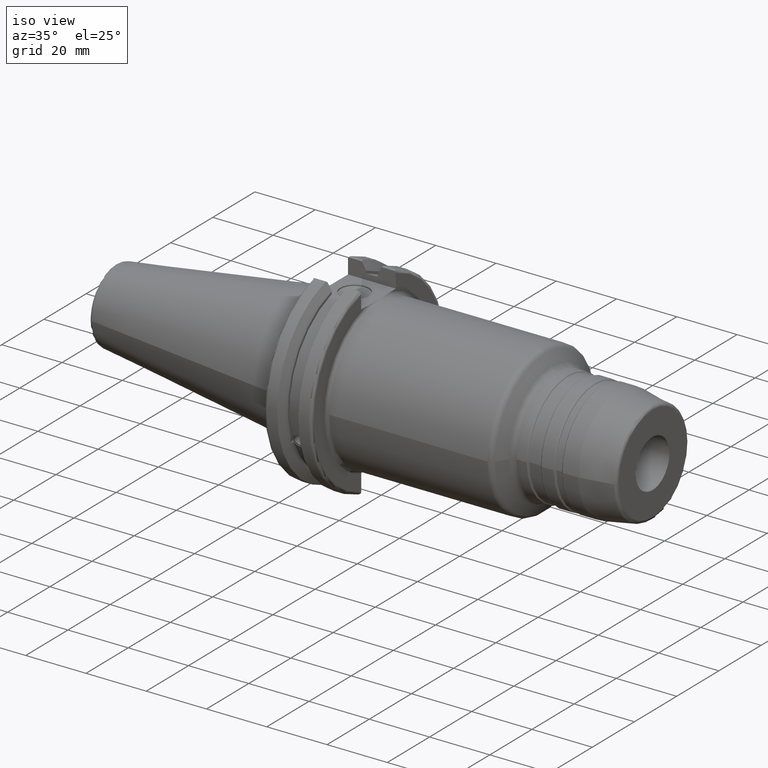
[diagram: clean part render]
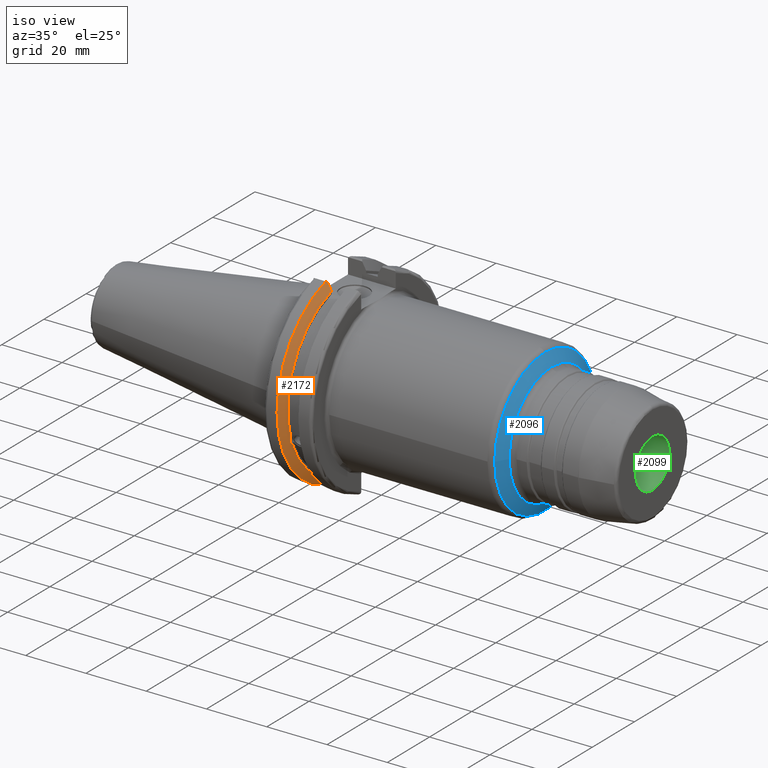
[diagram: same view with three faces highlighted in distinct colors, each labeled with its STEP entity id]
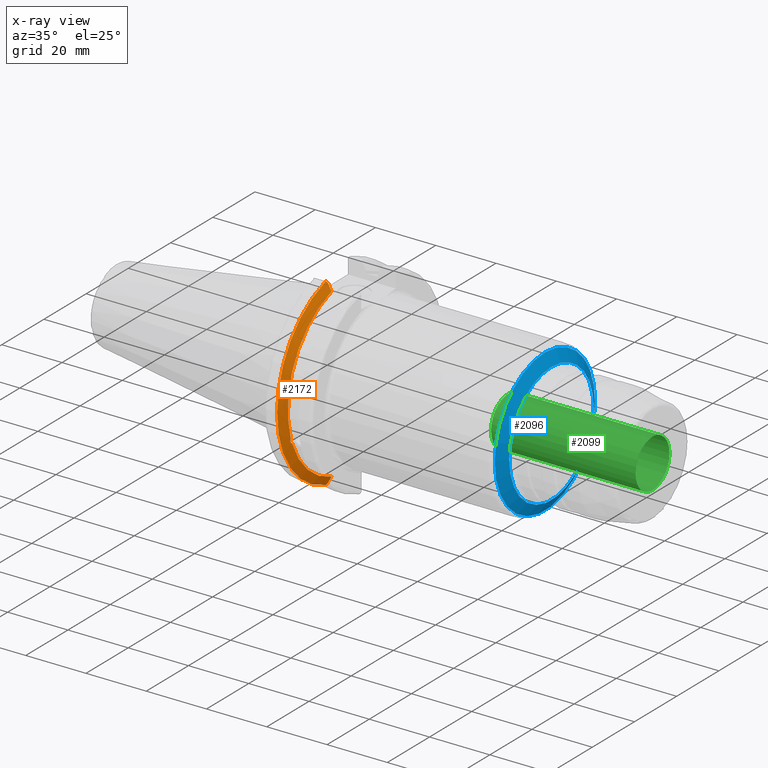
[diagram: x-ray of the same camera — body ghosted, the three highlighted faces saturated]
A machine part, iso view with three faces highlighted in distinct colors.
The next image is the same camera in x-ray (body ghosted, the three faces saturated) — at least one of them is partly hidden behind the body in this view.
Their STEP definitions:

[orange] entity #2172 — the highlighted conical surface has half-angle 60 deg.
#25=(
BOUNDED_CURVE()
B_SPLINE_CURVE(2,(#4064,#4065,#4066),.UNSPECIFIED.,.F.,.F.)
B_SPLINE_CURVE_WITH_KNOTS((3,3),(0.,0.276549142796136),.UNSPECIFIED.)
CURVE()
GEOMETRIC_REPRESENTATION_ITEM()
RATIONAL_B_SPLINE_CURVE((1.,1.00095203903316,1.00031614444813))
REPRESENTATION_ITEM('')
);
#26=(
BOUNDED_CURVE()
B_SPLINE_CURVE(2,(#4076,#4077,#4078),.UNSPECIFIED.,.F.,.F.)
B_SPLINE_CURVE_WITH_KNOTS((3,3),(0.0550586467392022,0.33160778953585),
 .UNSPECIFIED.)
CURVE()
GEOMETRIC_REPRESENTATION_ITEM()
RATIONAL_B_SPLINE_CURVE((1.00031614445148,1.00095203904325,1.))
REPRESENTATION_ITEM('')
);
#27=(
BOUNDED_CURVE()
B_SPLINE_CURVE(2,(#4111,#4112,#4113),.UNSPECIFIED.,.F.,.F.)
B_SPLINE_CURVE_WITH_KNOTS((3,3),(0.,0.0639048713676282),.UNSPECIFIED.)
CURVE()
GEOMETRIC_REPRESENTATION_ITEM()
RATIONAL_B_SPLINE_CURVE((1.,1.00028444218284,1.00047644010574))
REPRESENTATION_ITEM('')
);
#28=(
BOUNDED_CURVE()
B_SPLINE_CURVE(2,(#4172,#4173,#4174),.UNSPECIFIED.,.F.,.F.)
B_SPLINE_CURVE_WITH_KNOTS((3,3),(0.329353533631205,0.393258405001025),
 .UNSPECIFIED.)
CURVE()
GEOMETRIC_REPRESENTATION_ITEM()
RATIONAL_B_SPLINE_CURVE((1.00047644010572,1.00028444218283,1.))
REPRESENTATION_ITEM('')
);
#119=CONICAL_SURFACE('',#2495,30.3546886482472,1.0471975511966);
#145=B_SPLINE_CURVE_WITH_KNOTS('',3,(#3652,#3653,#3654,#3655,#3656,#3657,
#3658,#3659,#3660,#3661,#3662,#3663,#3664,#3665),.UNSPECIFIED.,.F.,.F.,
(4,2,2,2,2,2,4),(0.451995700189024,0.464547828547663,0.504528771685167,
0.544509714822672,0.584490657960178,0.624471601097683,0.63702372945632),
 .UNSPECIFIED.);
#273=FACE_OUTER_BOUND('',#394,.T.);
#394=EDGE_LOOP('',(#2021,#2022,#2023,#2024,#2025,#2026,#2027,#2028));
#704=CIRCLE('',#2372,28.9593772964944);
#762=CIRCLE('',#2494,31.75);
#763=CIRCLE('',#2496,28.9593772964944);
#883=VERTEX_POINT('',#3649);
#884=VERTEX_POINT('',#3651);
#904=VERTEX_POINT('',#3750);
#974=VERTEX_POINT('',#4061);
#975=VERTEX_POINT('',#4063);
#978=VERTEX_POINT('',#4075);
#982=VERTEX_POINT('',#4109);
#995=VERTEX_POINT('',#4171);
#1164=EDGE_CURVE('',#884,#883,#145,.T.);
#1191=EDGE_CURVE('',#884,#904,#704,.T.);
#1286=EDGE_CURVE('',#975,#974,#25,.T.);
#1292=EDGE_CURVE('',#978,#904,#26,.T.);
#1300=EDGE_CURVE('',#982,#974,#27,.T.);
#1319=EDGE_CURVE('',#978,#995,#28,.T.);
#1347=EDGE_CURVE('',#982,#995,#762,.T.);
#1348=EDGE_CURVE('',#975,#883,#763,.T.);
#2021=ORIENTED_EDGE('',*,*,#1164,.T.);
#2022=ORIENTED_EDGE('',*,*,#1348,.F.);
#2023=ORIENTED_EDGE('',*,*,#1286,.T.);
#2024=ORIENTED_EDGE('',*,*,#1300,.F.);
#2025=ORIENTED_EDGE('',*,*,#1347,.T.);
#2026=ORIENTED_EDGE('',*,*,#1319,.F.);
#2027=ORIENTED_EDGE('',*,*,#1292,.T.);
#2028=ORIENTED_EDGE('',*,*,#1191,.F.);
#2172=ADVANCED_FACE('',(#273),#119,.T.);
#2372=AXIS2_PLACEMENT_3D('',#3751,#2894,#2895);
#2494=AXIS2_PLACEMENT_3D('',#4238,#3194,#3195);
#2495=AXIS2_PLACEMENT_3D('',#4239,#3196,#3197);
#2496=AXIS2_PLACEMENT_3D('',#4240,#3198,#3199);
#2894=DIRECTION('center_axis',(1.,0.,0.));
#2895=DIRECTION('ref_axis',(0.,0.,-1.));
#3194=DIRECTION('center_axis',(1.,0.,0.));
#3195=DIRECTION('ref_axis',(0.,0.,-1.));
#3196=DIRECTION('center_axis',(-1.,0.,0.));
#3197=DIRECTION('ref_axis',(0.,-1.,-1.22464679914735E-16));
#3198=DIRECTION('center_axis',(1.,0.,0.));
#3199=DIRECTION('ref_axis',(0.,0.,-1.));
#3649=CARTESIAN_POINT('',(9.2191,-27.4956274489925,-9.09043478536245));
#3651=CARTESIAN_POINT('',(9.2191,-26.9060914640648,-10.7101715919071));
#3652=CARTESIAN_POINT('Ctrl Pts',(9.2191,-26.9060914640648,-10.7101715919071));
#3653=CARTESIAN_POINT('Ctrl Pts',(9.20497959280038,-26.9406927482839,-10.6893765730703));
#3654=CARTESIAN_POINT('Ctrl Pts',(9.19150701821433,-26.9744191989197,-10.6676007180673));
#3655=CARTESIAN_POINT('Ctrl Pts',(9.13811855884095,-27.1113422433189,-10.5723885976054));
#3656=CARTESIAN_POINT('Ctrl Pts',(9.09998029158246,-27.2180531796526,-10.4801333026531));
#3657=CARTESIAN_POINT('Ctrl Pts',(9.04778935539424,-27.3968610665578,-10.2639559818059));
#3658=CARTESIAN_POINT('Ctrl Pts',(9.0341,-27.4684373304961,-10.139516340139));
#3659=CARTESIAN_POINT('Ctrl Pts',(9.0341,-27.559599249844,-9.8890510252165));
#3660=CARTESIAN_POINT('Ctrl Pts',(9.04778935539424,-27.5847569104122,-9.74771639360671));
#3661=CARTESIAN_POINT('Ctrl Pts',(9.09998029158246,-27.5867382255984,-9.46717946402648));
#3662=CARTESIAN_POINT('Ctrl Pts',(9.13811855884095,-27.5642934663232,-9.32791534028655));
#3663=CARTESIAN_POINT('Ctrl Pts',(9.19150701821434,-27.5206055003512,-9.16696618806877));
#3664=CARTESIAN_POINT('Ctrl Pts',(9.20497959280038,-27.5087667900418,-9.12860597076217));
#3665=CARTESIAN_POINT('Ctrl Pts',(9.2191,-27.4956274489925,-9.09043478536245));
#3750=CARTESIAN_POINT('',(9.2191,-8.19,-27.7771386827498));
#3751=CARTESIAN_POINT('Origin',(9.2191,0.,0.));
#4061=CARTESIAN_POINT('',(7.88668530351257,-8.19,30.1755016258903));
#4063=CARTESIAN_POINT('',(9.2191,-8.19,27.7771386827498));
#4064=CARTESIAN_POINT('Ctrl Pts',(9.2191,-8.19,27.7771386827498));
#4065=CARTESIAN_POINT('Ctrl Pts',(8.58046356152393,-8.19,28.9303689539705));
#4066=CARTESIAN_POINT('Ctrl Pts',(7.88668530351257,-8.19,30.1755016258903));
#4075=CARTESIAN_POINT('',(7.88668530351256,-8.19,-30.1755016258903));
#4076=CARTESIAN_POINT('Ctrl Pts',(7.88668530351256,-8.19,-30.1755016258903));
#4077=CARTESIAN_POINT('Ctrl Pts',(8.5804635615235,-8.19,-28.9303689539712));
#4078=CARTESIAN_POINT('Ctrl Pts',(9.2191,-8.19,-27.7771386827498));
#4109=CARTESIAN_POINT('',(7.60793323092436,-8.67204822802685,30.5427254764662));
#4111=CARTESIAN_POINT('Ctrl Pts',(7.60793323092436,-8.67204822802686,30.5427254764662));
#4112=CARTESIAN_POINT('Ctrl Pts',(7.74899148121626,-8.42917748262648,30.357706789263));
#4113=CARTESIAN_POINT('Ctrl Pts',(7.88668530351257,-8.19,30.1755016258903));
#4171=CARTESIAN_POINT('',(7.60793323092436,-8.67204822802685,-30.5427254764662));
#4172=CARTESIAN_POINT('Ctrl Pts',(7.88668530351256,-8.19,-30.1755016258903));
#4173=CARTESIAN_POINT('Ctrl Pts',(7.74899148121159,-8.42917748263467,-30.3577067892692));
#4174=CARTESIAN_POINT('Ctrl Pts',(7.60793323092435,-8.67204822802687,-30.5427254764662));
#4238=CARTESIAN_POINT('Origin',(7.60793323092436,0.,0.));
#4239=CARTESIAN_POINT('Origin',(8.41351661546218,0.,0.));
#4240=CARTESIAN_POINT('Origin',(9.2191,0.,0.));

[blue] entity #2096 — the highlighted conical surface has half-angle 60 deg.
#108=CONICAL_SURFACE('',#2315,21.875,1.0471975511966);
#197=FACE_OUTER_BOUND('',#306,.T.);
#306=EDGE_LOOP('',(#1561,#1562,#1563,#1564,#1565,#1566,#1567,#1568));
#413=LINE('',#3554,#507);
#507=VECTOR('',#2761,21.875);
#673=CIRCLE('',#2311,20.);
#675=CIRCLE('',#2313,20.);
#676=CIRCLE('',#2314,20.);
#677=CIRCLE('',#2316,23.75);
#678=CIRCLE('',#2317,23.75);
#679=CIRCLE('',#2318,23.75);
#852=VERTEX_POINT('',#3545);
#853=VERTEX_POINT('',#3546);
#854=VERTEX_POINT('',#3549);
#855=VERTEX_POINT('',#3553);
#856=VERTEX_POINT('',#3555);
#857=VERTEX_POINT('',#3557);
#1121=EDGE_CURVE('',#852,#853,#673,.T.);
#1123=EDGE_CURVE('',#853,#854,#675,.T.);
#1124=EDGE_CURVE('',#854,#852,#676,.T.);
#1125=EDGE_CURVE('',#854,#855,#413,.T.);
#1126=EDGE_CURVE('',#856,#855,#677,.T.);
#1127=EDGE_CURVE('',#857,#856,#678,.T.);
#1128=EDGE_CURVE('',#855,#857,#679,.T.);
#1561=ORIENTED_EDGE('',*,*,#1121,.F.);
#1562=ORIENTED_EDGE('',*,*,#1124,.F.);
#1563=ORIENTED_EDGE('',*,*,#1125,.T.);
#1564=ORIENTED_EDGE('',*,*,#1126,.F.);
#1565=ORIENTED_EDGE('',*,*,#1127,.F.);
#1566=ORIENTED_EDGE('',*,*,#1128,.F.);
#1567=ORIENTED_EDGE('',*,*,#1125,.F.);
#1568=ORIENTED_EDGE('',*,*,#1123,.F.);
#2096=ADVANCED_FACE('',(#197),#108,.T.);
#2311=AXIS2_PLACEMENT_3D('',#3547,#2751,#2752);
#2313=AXIS2_PLACEMENT_3D('',#3550,#2755,#2756);
#2314=AXIS2_PLACEMENT_3D('',#3551,#2757,#2758);
#2315=AXIS2_PLACEMENT_3D('',#3552,#2759,#2760);
#2316=AXIS2_PLACEMENT_3D('',#3556,#2762,#2763);
#2317=AXIS2_PLACEMENT_3D('',#3558,#2764,#2765);
#2318=AXIS2_PLACEMENT_3D('',#3559,#2766,#2767);
#2751=DIRECTION('center_axis',(1.,0.,0.));
#2752=DIRECTION('ref_axis',(0.,-1.,3.06161699786838E-17));
#2755=DIRECTION('center_axis',(1.,0.,0.));
#2756=DIRECTION('ref_axis',(0.,-1.,3.06161699786838E-17));
#2757=DIRECTION('center_axis',(1.,0.,0.));
#2758=DIRECTION('ref_axis',(0.,-1.,3.06161699786838E-17));
#2759=DIRECTION('center_axis',(-1.,0.,0.));
#2760=DIRECTION('ref_axis',(0.,1.,0.));
#2761=DIRECTION('',(-0.5,-0.866025403784439,-1.06057523872491E-16));
#2762=DIRECTION('center_axis',(-1.,0.,0.));
#2763=DIRECTION('ref_axis',(0.,-1.,3.06161699786838E-17));
#2764=DIRECTION('center_axis',(-1.,0.,0.));
#2765=DIRECTION('ref_axis',(0.,-1.,3.06161699786838E-17));
#2766=DIRECTION('center_axis',(-1.,0.,0.));
#2767=DIRECTION('ref_axis',(0.,-1.,3.06161699786838E-17));
#3545=CARTESIAN_POINT('',(76.4226497308104,20.,-1.22464679914735E-15));
#3546=CARTESIAN_POINT('',(76.4226497308104,-2.44929359829471E-15,20.));
#3547=CARTESIAN_POINT('Origin',(76.4226497308104,0.,-3.06161699786838E-15));
#3549=CARTESIAN_POINT('',(76.4226497308104,-20.,-2.44929359829471E-15));
#3550=CARTESIAN_POINT('Origin',(76.4226497308104,0.,-3.06161699786838E-15));
#3551=CARTESIAN_POINT('Origin',(76.4226497308104,0.,-3.06161699786838E-15));
#3552=CARTESIAN_POINT('Origin',(75.3401179760798,0.,0.));
#3553=CARTESIAN_POINT('',(74.2575862213493,-23.75,-2.90853614797496E-15));
#3554=CARTESIAN_POINT('',(75.3401179760798,-21.875,-2.67891487313484E-15));
#3555=CARTESIAN_POINT('',(74.2575862213493,23.75,-7.27134036993741E-15));
#3556=CARTESIAN_POINT('Origin',(74.2575862213493,0.,-3.6356701849687E-15));
#3557=CARTESIAN_POINT('',(74.2575862213493,-2.90853614797496E-15,23.75));
#3558=CARTESIAN_POINT('Origin',(74.2575862213493,0.,-3.6356701849687E-15));
#3559=CARTESIAN_POINT('Origin',(74.2575862213493,0.,-3.6356701849687E-15));

[green] entity #2099 — the highlighted cylindrical surface (bore or boss wall) has radius 8 mm, axis along (1, 0, 0).
#200=FACE_OUTER_BOUND('',#309,.T.);
#309=EDGE_LOOP('',(#1581,#1582,#1583,#1584,#1585,#1586));
#416=LINE('',#3570,#510);
#510=VECTOR('',#2780,8.);
#662=CIRCLE('',#2295,8.00000000000001);
#663=CIRCLE('',#2296,8.00000000000001);
#682=CIRCLE('',#2324,8.);
#683=CIRCLE('',#2325,8.);
#837=VERTEX_POINT('',#3462);
#838=VERTEX_POINT('',#3463);
#860=VERTEX_POINT('',#3569);
#861=VERTEX_POINT('',#3571);
#1102=EDGE_CURVE('',#837,#838,#662,.T.);
#1103=EDGE_CURVE('',#838,#837,#663,.T.);
#1133=EDGE_CURVE('',#838,#860,#416,.T.);
#1134=EDGE_CURVE('',#861,#860,#682,.T.);
#1135=EDGE_CURVE('',#860,#861,#683,.T.);
#1581=ORIENTED_EDGE('',*,*,#1102,.T.);
#1582=ORIENTED_EDGE('',*,*,#1133,.T.);
#1583=ORIENTED_EDGE('',*,*,#1134,.F.);
#1584=ORIENTED_EDGE('',*,*,#1135,.F.);
#1585=ORIENTED_EDGE('',*,*,#1133,.F.);
#1586=ORIENTED_EDGE('',*,*,#1103,.T.);
#2042=CYLINDRICAL_SURFACE('',#2323,8.);
#2099=ADVANCED_FACE('',(#200),#2042,.F.);
#2295=AXIS2_PLACEMENT_3D('',#3464,#2715,#2716);
#2296=AXIS2_PLACEMENT_3D('',#3465,#2717,#2718);
#2323=AXIS2_PLACEMENT_3D('',#3568,#2778,#2779);
#2324=AXIS2_PLACEMENT_3D('',#3572,#2781,#2782);
#2325=AXIS2_PLACEMENT_3D('',#3573,#2783,#2784);
#2715=DIRECTION('center_axis',(1.,0.,0.));
#2716=DIRECTION('ref_axis',(0.,0.,-1.));
#2717=DIRECTION('center_axis',(1.,0.,0.));
#2718=DIRECTION('ref_axis',(0.,0.,-1.));
#2778=DIRECTION('center_axis',(1.,0.,0.));
#2779=DIRECTION('ref_axis',(0.,1.,0.));
#2780=DIRECTION('',(-1.,0.,0.));
#2781=DIRECTION('center_axis',(1.,0.,0.));
#2782=DIRECTION('ref_axis',(0.,0.,-1.));
#2783=DIRECTION('center_axis',(1.,0.,0.));
#2784=DIRECTION('ref_axis',(0.,0.,-1.));
#3462=CARTESIAN_POINT('',(110.,8.00000000000001,0.));
#3463=CARTESIAN_POINT('',(110.,-8.,-9.79717439317883E-16));
#3464=CARTESIAN_POINT('Origin',(110.,0.,0.));
#3465=CARTESIAN_POINT('Origin',(110.,0.,0.));
#3568=CARTESIAN_POINT('Origin',(86.,0.,0.));
#3569=CARTESIAN_POINT('',(62.,-8.,-9.79717439317883E-16));
#3570=CARTESIAN_POINT('',(86.,-8.,-9.79717439317883E-16));
#3571=CARTESIAN_POINT('',(62.,8.,0.));
#3572=CARTESIAN_POINT('Origin',(62.,0.,0.));
#3573=CARTESIAN_POINT('Origin',(62.,0.,0.));